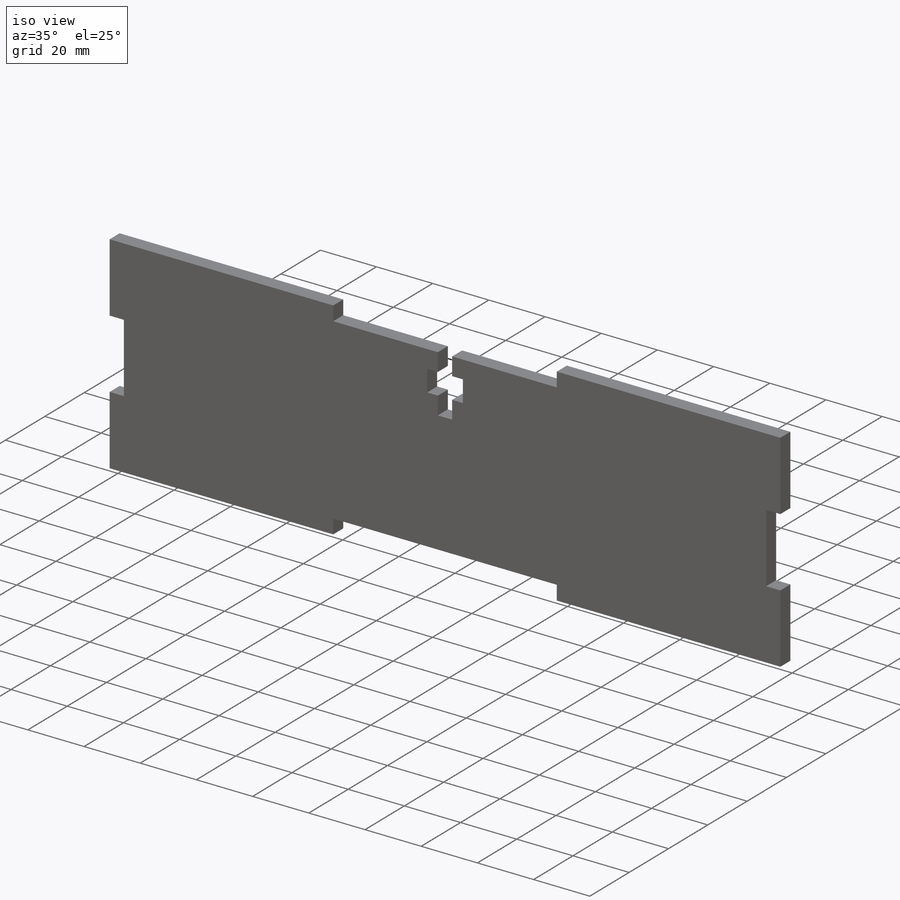
[diagram: iso view]
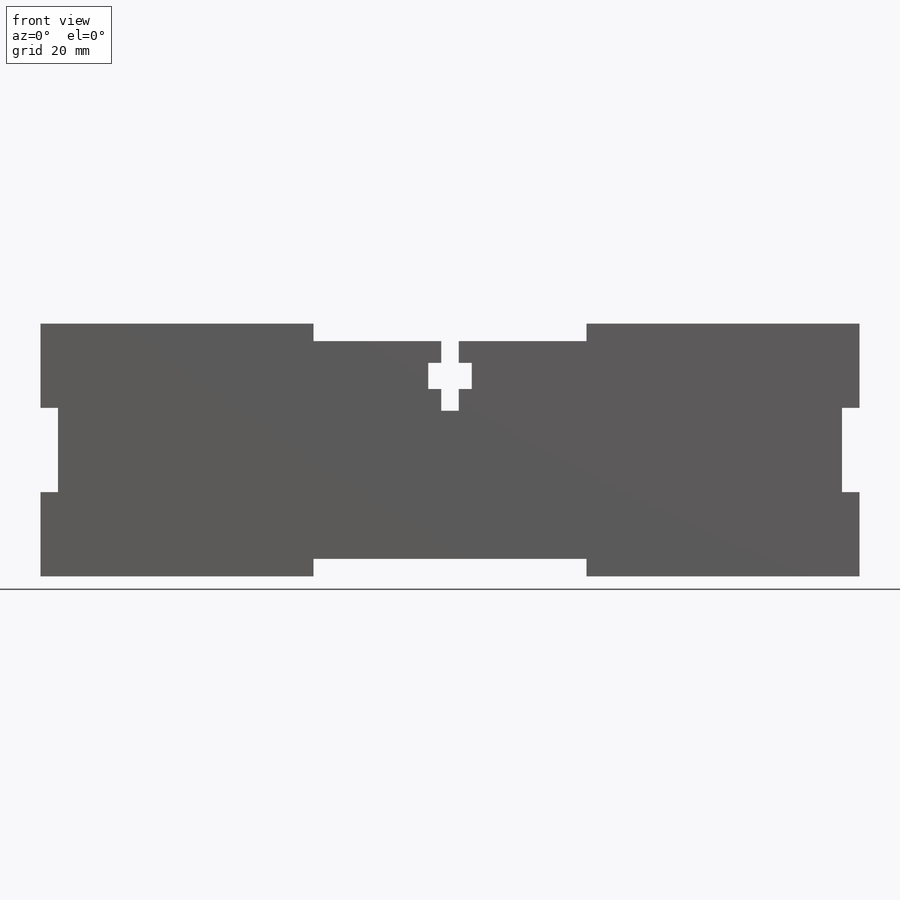
[diagram: front view]
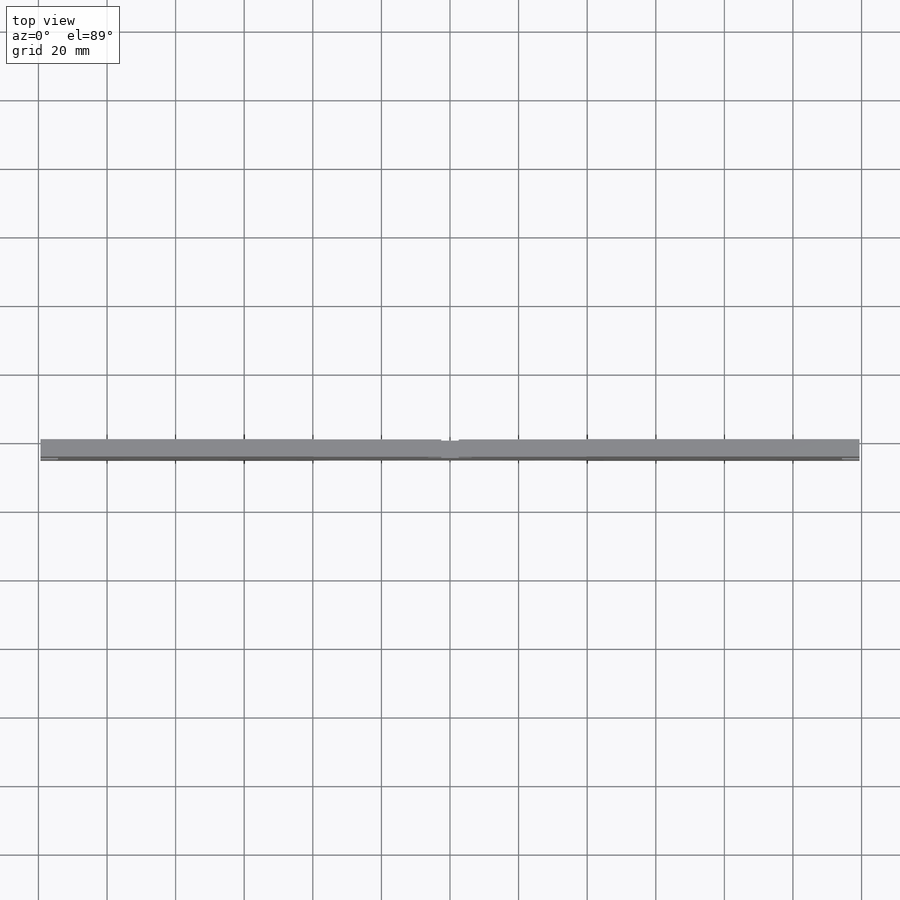
[diagram: top view]
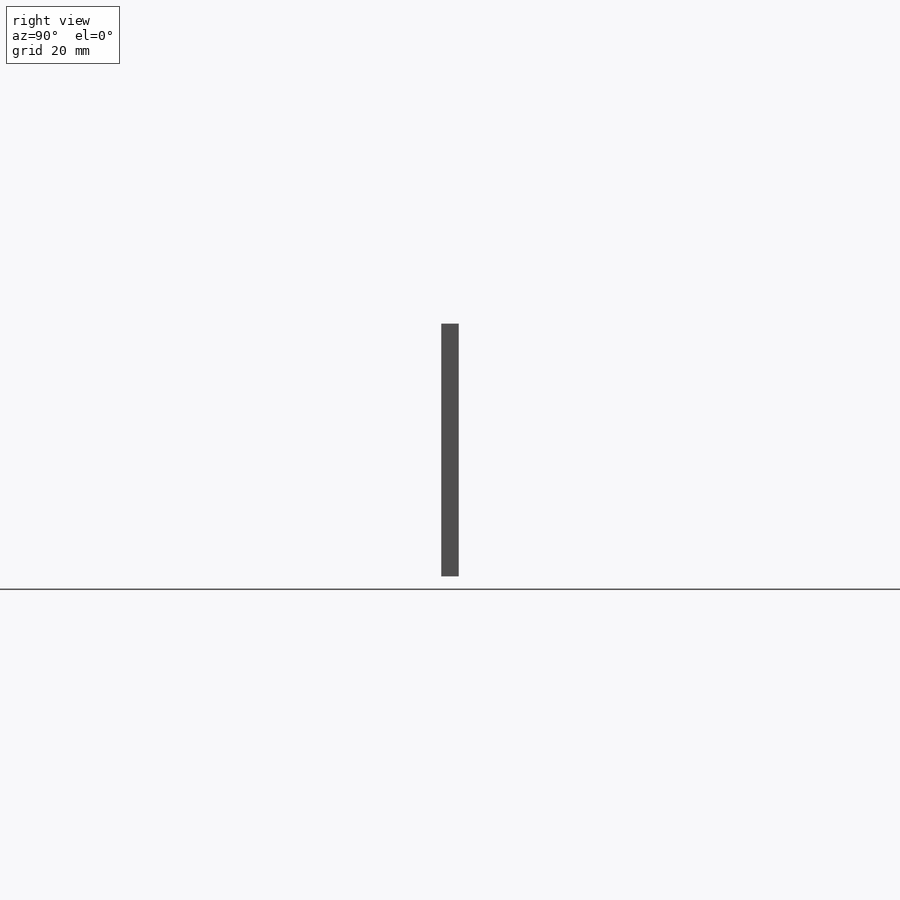
[diagram: right view]
SOLIDWORKS PART (.sldprt)
format: sldprt  version: not decoded by parser v0  size: 287,744 bytes
history: native  units: mm
features: sketch x5, cut_extrude x4, extrude x3, material x1 (+11 scaffold rows collapsed)
feature tree (24):
  scaffold x11  (default folders/planes/origin — collapsed)
  material  "Material <not specified>"
  sketch  "Sketch1"  dims[D1=231.14mm D2=73.66mm]
  extrude  "Boss-Extrude1"  Depth=5.08mm
  sketch  "Sketch2"  dims[D1=~77.046667mm D2=5.08mm D3=~77.046667mm]
  cut_extrude  "Cut-Extrude1"  [1 undecoded]
  sketch  "Sketch3"  dims[D1=5.08mm D2=~24.553333mm D3=~24.553333mm]
  cut_extrude  "Cut-Extrude2"  [1 undecoded]
  sketch  "Sketch5"  dims[D1=~1.37795mm D2=~1.37795mm D3=13.081mm]
  cut_extrude  "Cut-Extrude4"  [1 undecoded]
  sketch  "Sketch6"  dims[D1=6.096mm D2=2.1717mm D3=5.08mm D4=7.62mm]
  cut_extrude  "Cut-Extrude5"  [1 undecoded]
  extrude  "ESC<1>@Box1"  [1 undecoded]
  extrude  "Board<1>@Box1"  [1 undecoded]
decode coverage: 6 of 12 modeling features carry decoded parameters
note: ~ marks probable driven/reference dimensions
note: 6 parameter values undecoded
summary: no parameter record found for 6 features
note: suppression state not decoded; provenance and decode notes live in map.json
